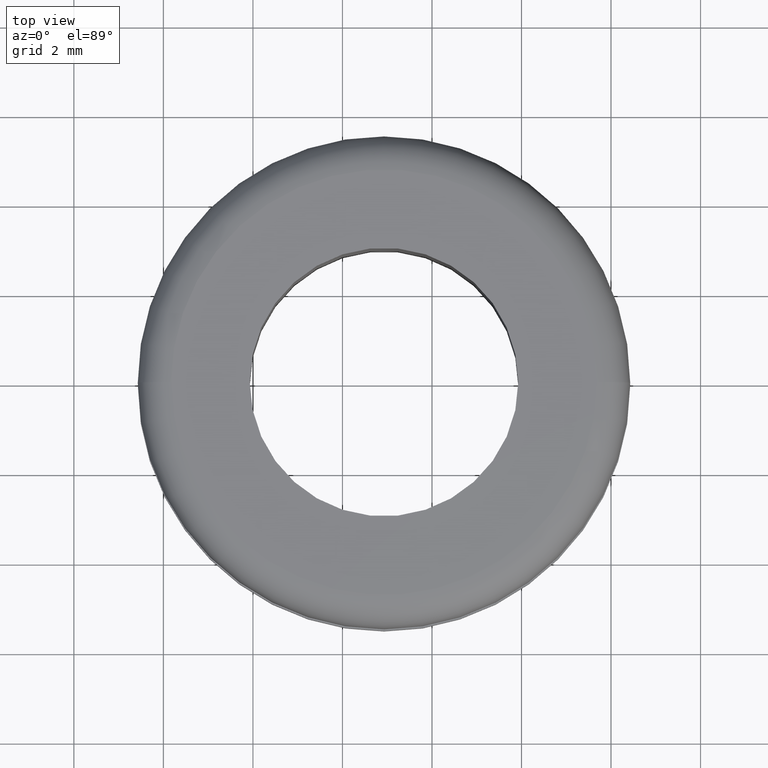
[diagram: clean part render]
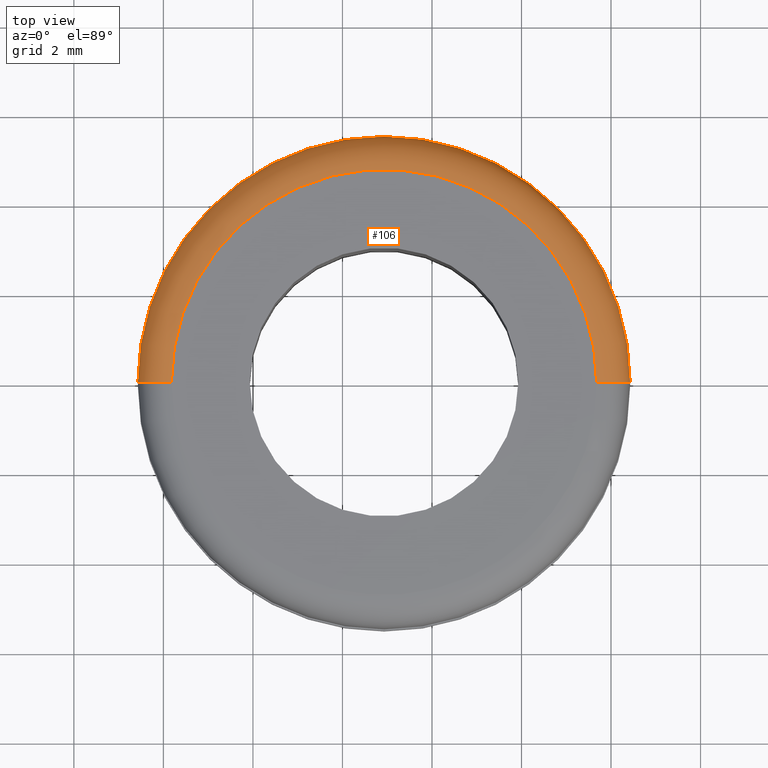
[diagram: same view with one face highlighted and labeled with its STEP entity id]
A machine part, top view. The second image highlights one B-rep face of the part: STEP entity #106.
In plain terms, the highlighted toroidal blend (fillet) surface has major radius 4.75 mm and minor (blend) radius 0.75 mm.
Its self-contained STEP definition (entity closure, byte-faithful):
#13 = CIRCLE ( 'NONE', #226, 0.7500000000000006700 ) ;
#20 = AXIS2_PLACEMENT_3D ( 'NONE', #93, #84, #21 ) ;
#21 = DIRECTION ( 'NONE',  ( -1.000000000000000000, 0.0000000000000000000, 0.0000000000000000000 ) ) ;
#42 = AXIS2_PLACEMENT_3D ( 'NONE', #235, #212, #125 ) ;
#56 = CIRCLE ( 'NONE', #452, 5.500000000027399400 ) ;
#74 = AXIS2_PLACEMENT_3D ( 'NONE', #142, #364, #284 ) ;
#75 = CIRCLE ( 'NONE', #42, 0.7500000000000006700 ) ;
#82 = ORIENTED_EDGE ( 'NONE', *, *, #105, .F. ) ;
#84 = DIRECTION ( 'NONE',  ( 0.0000000000000000000, 0.0000000000000000000, -1.000000000000000000 ) ) ;
#86 = CARTESIAN_POINT ( 'NONE',  ( 113.6781270167288900, 6.276314845663863700E-016, 138.5834774696089900 ) ) ;
#93 = CARTESIAN_POINT ( 'NONE',  ( 108.9281270167014100, 0.0000000000000000000, 137.8334774696089900 ) ) ;
#105 = EDGE_CURVE ( 'NONE', #135, #154, #56, .T. ) ;
#106 = ADVANCED_FACE ( 'NONE', ( #236 ), #147, .T. ) ;
#125 = DIRECTION ( 'NONE',  ( -1.000000000000000000, -1.224646799147352000E-016, 0.0000000000000000000 ) ) ;
#135 = VERTEX_POINT ( 'NONE', #160 ) ;
#142 = CARTESIAN_POINT ( 'NONE',  ( 108.9281270167014100, 0.0000000000000000000, 138.5834774696089900 ) ) ;
#146 = DIRECTION ( 'NONE',  ( 0.0000000000000000000, 0.0000000000000000000, -1.000000000000000000 ) ) ;
#147 = TOROIDAL_SURFACE ( 'NONE', #20, 4.750000000027499800, 0.7500000000000000000 ) ;
#151 = EDGE_CURVE ( 'NONE', #365, #360, #224, .T. ) ;
#154 = VERTEX_POINT ( 'NONE', #289 ) ;
#160 = CARTESIAN_POINT ( 'NONE',  ( 103.4281270166740000, 0.0000000000000000000, 137.8334774696089900 ) ) ;
#199 = DIRECTION ( 'NONE',  ( 0.0000000000000000000, 0.0000000000000000000, -1.000000000000000000 ) ) ;
#212 = DIRECTION ( 'NONE',  ( -1.224646799147353200E-016, 1.000000000000000000, 0.0000000000000000000 ) ) ;
#224 = CIRCLE ( 'NONE', #74, 4.750000000027496200 ) ;
#226 = AXIS2_PLACEMENT_3D ( 'NONE', #444, #329, #146 ) ;
#228 = EDGE_CURVE ( 'NONE', #365, #135, #13, .T. ) ;
#235 = CARTESIAN_POINT ( 'NONE',  ( 113.6781270167288900, 5.817072295983604900E-016, 137.8334774696089900 ) ) ;
#236 = FACE_OUTER_BOUND ( 'NONE', #251, .T. ) ;
#251 = EDGE_LOOP ( 'NONE', ( #477, #443, #82, #309 ) ) ;
#276 = CARTESIAN_POINT ( 'NONE',  ( 104.1781270166739100, 0.0000000000000000000, 138.5834774696089900 ) ) ;
#284 = DIRECTION ( 'NONE',  ( -1.000000000000000000, 0.0000000000000000000, 0.0000000000000000000 ) ) ;
#289 = CARTESIAN_POINT ( 'NONE',  ( 114.4281270167288100, 6.735557395343997200E-016, 137.8334774696089900 ) ) ;
#309 = ORIENTED_EDGE ( 'NONE', *, *, #228, .F. ) ;
#329 = DIRECTION ( 'NONE',  ( -0.0000000000000000000, -1.000000000000000000, -0.0000000000000000000 ) ) ;
#357 = EDGE_CURVE ( 'NONE', #360, #154, #75, .T. ) ;
#360 = VERTEX_POINT ( 'NONE', #86 ) ;
#364 = DIRECTION ( 'NONE',  ( 0.0000000000000000000, 0.0000000000000000000, -1.000000000000000000 ) ) ;
#365 = VERTEX_POINT ( 'NONE', #276 ) ;
#421 = CARTESIAN_POINT ( 'NONE',  ( 108.9281270167014100, 0.0000000000000000000, 137.8334774696089900 ) ) ;
#443 = ORIENTED_EDGE ( 'NONE', *, *, #357, .T. ) ;
#444 = CARTESIAN_POINT ( 'NONE',  ( 104.1781270166739100, 0.0000000000000000000, 137.8334774696089900 ) ) ;
#452 = AXIS2_PLACEMENT_3D ( 'NONE', #421, #199, #462 ) ;
#462 = DIRECTION ( 'NONE',  ( -1.000000000000000000, 0.0000000000000000000, 0.0000000000000000000 ) ) ;
#477 = ORIENTED_EDGE ( 'NONE', *, *, #151, .T. ) ;